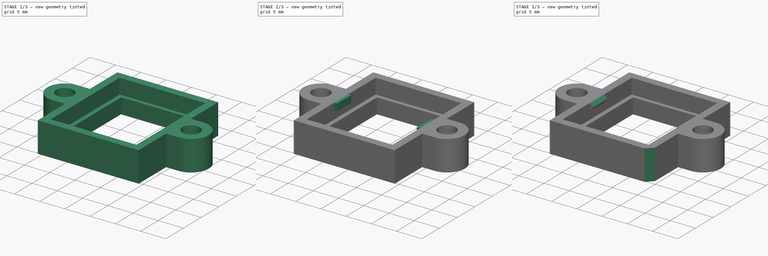
[diagram: build sequence overview — one tinted view per stage of 3, left to right]
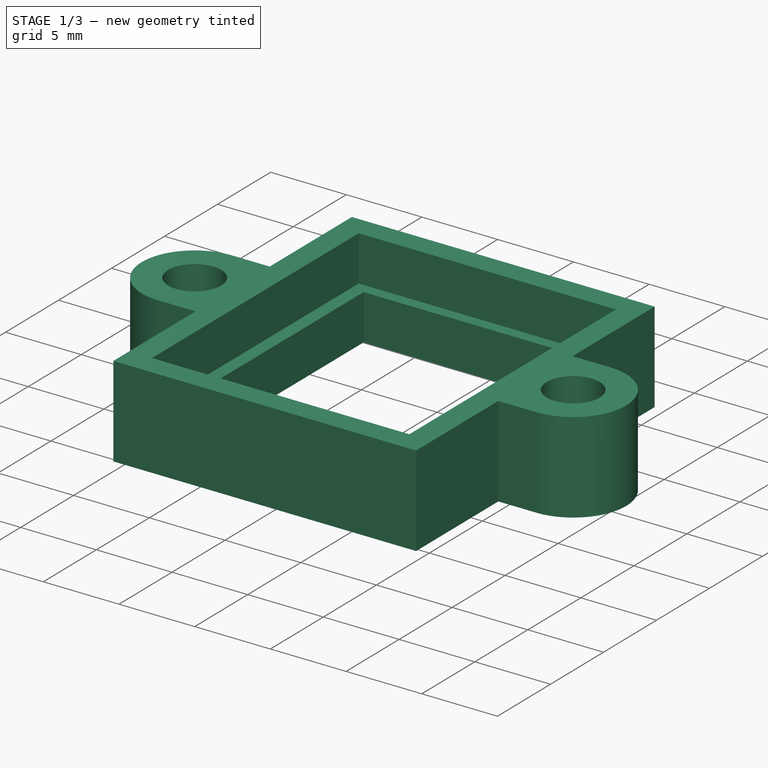
[diagram: stage 1 of 3 — iso view after this stage's code; geometry added in this stage tinted green]
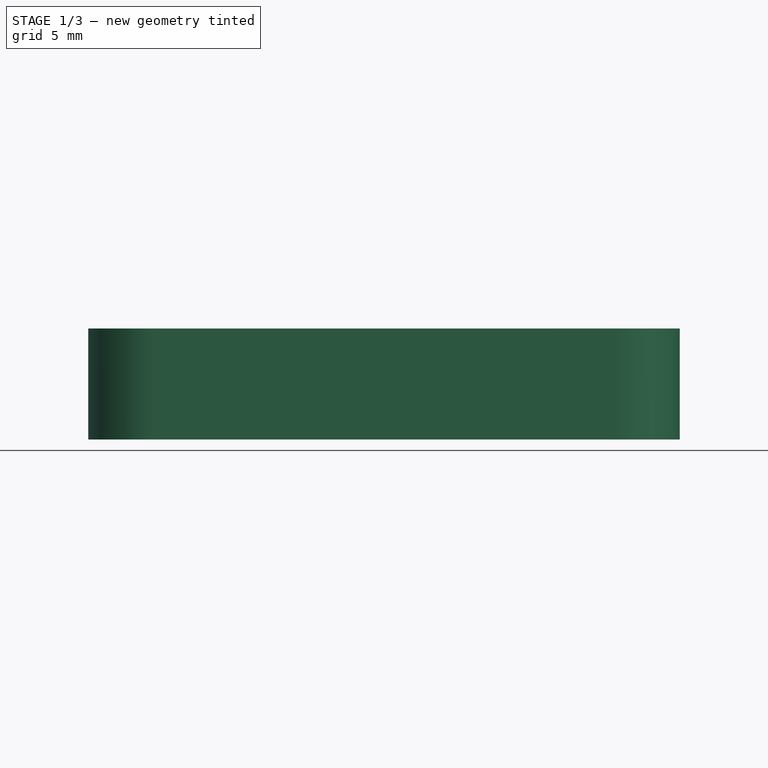
[diagram: stage 1 of 3 — front view after this stage's code; geometry added in this stage tinted green]
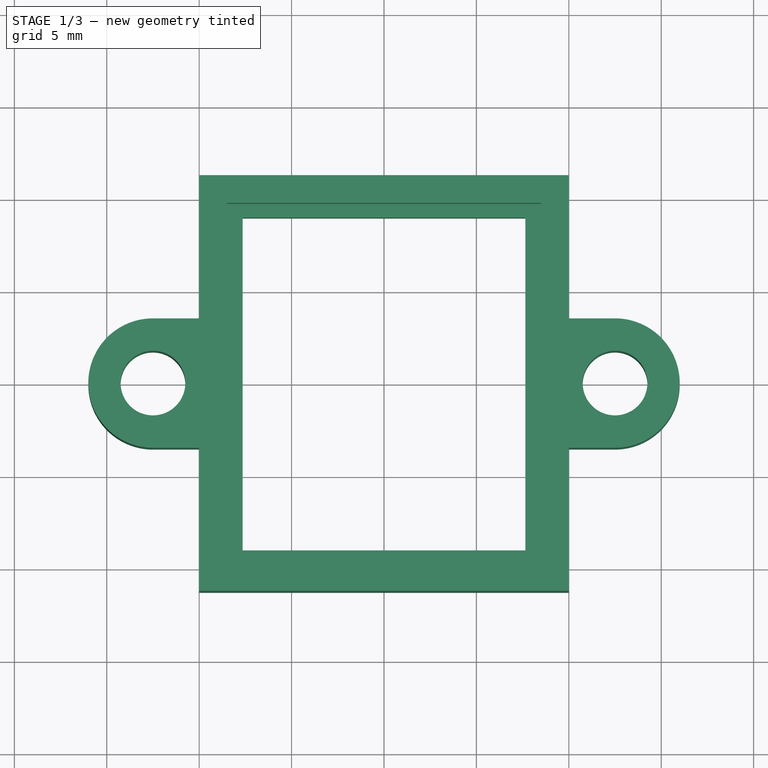
[diagram: stage 1 of 3 — top view after this stage's code; geometry added in this stage tinted green]
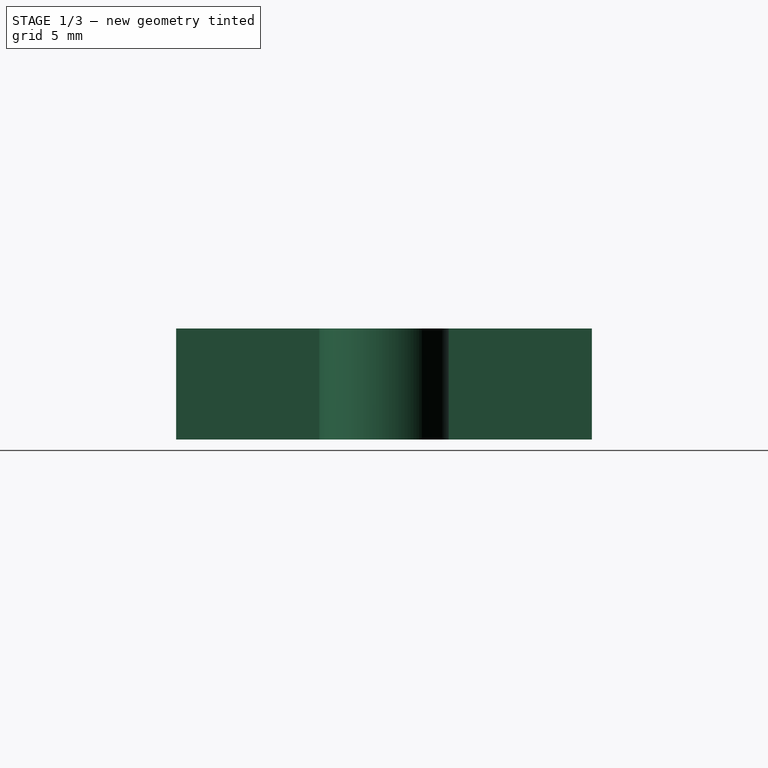
[diagram: stage 1 of 3 — right view after this stage's code; geometry added in this stage tinted green]
FCSTD DOCUMENT  (FreeCAD 0.17R13541 (Git))
Label: DRV8833_holder
License: All rights reserved
LicenseURL: http://en.wikipedia.org/wiki/All_rights_reserved
objects: Sketcher::SketchObject×3, PartDesign::Pad×2, PartDesign::Chamfer×2, PartDesign::Pocket×1, PartDesign::Body×1
note: 12 computed .brp shape members not serialized (recipe doc carries the construction recipe); baked Part::Feature solids carry a one-line shape summary decoded from their .brp

FEATURE [Sketcher::SketchObject] Sketch
  MapMode = 5
  Support = -> [XY_Plane]
  sketch-geometry (18):
    g0: LineSegment StartX=-7.65 StartY=9 StartZ=0 EndX=7.65 EndY=9 EndZ=0
    g1: LineSegment StartX=7.65 StartY=9 StartZ=0 EndX=7.65 EndY=-9 EndZ=0
    g2: LineSegment StartX=7.65 StartY=-9 StartZ=0 EndX=-7.65 EndY=-9 EndZ=0
    g3: LineSegment StartX=-7.65 StartY=-9 StartZ=0 EndX=-7.65 EndY=9 EndZ=0
    g4: LineSegment StartX=-10 StartY=11.25 StartZ=0 EndX=10 EndY=11.25 EndZ=0
    g5: LineSegment StartX=10 StartY=11.25 StartZ=0 EndX=10 EndY=3.5 EndZ=0
    g6: LineSegment StartX=10 StartY=-11.25 StartZ=0 EndX=-10 EndY=-11.25 EndZ=0
    g7: LineSegment StartX=-10 StartY=-11.25 StartZ=0 EndX=-10 EndY=-3.5 EndZ=0
    g8: Circle CenterX=-12.5 CenterY=0 CenterZ=0 NormalX=0 NormalY=0 NormalZ=1 AngleXU=0 Radius=1.75
    g9: Circle CenterX=12.5 CenterY=0 CenterZ=0 NormalX=0 NormalY=0 NormalZ=1 AngleXU=0 Radius=1.75
    g10: LineSegment StartX=-10 StartY=3.5 StartZ=0 EndX=-12.5 EndY=3.5 EndZ=0
    g11: LineSegment StartX=-12.5 StartY=-3.5 StartZ=0 EndX=-10 EndY=-3.5 EndZ=0
    g12: LineSegment StartX=10 StartY=-3.5 StartZ=0 EndX=12.5 EndY=-3.5 EndZ=0
    g13: LineSegment StartX=12.5 StartY=3.5 StartZ=0 EndX=10 EndY=3.5 EndZ=0
    g14: ArcOfCircle CenterX=-12.5 CenterY=0 CenterZ=0 NormalX=0 NormalY=0 NormalZ=1 AngleXU=0 Radius=3.5 StartAngle=1.5708 EndAngle=4.71239
    g15: ArcOfCircle CenterX=12.5 CenterY=0 CenterZ=0 NormalX=0 NormalY=0 NormalZ=1 AngleXU=0 Radius=3.5 StartAngle=4.71239 EndAngle=7.85398
    g16: LineSegment StartX=-10 StartY=3.5 StartZ=0 EndX=-10 EndY=11.25 EndZ=0
    g17: LineSegment StartX=10 StartY=-3.5 StartZ=0 EndX=10 EndY=-11.25 EndZ=0
  constraints (48):
    c: Coincident(g0,g1)
    c: Coincident(g1,g2)
    c: Coincident(g2,g3)
    c: Coincident(g3,g0)
    c: Horizontal(g0)
    c: Horizontal(g2)
    c: Vertical(g1)
    c: Vertical(g3)
    c: Coincident(g4,g5)
    c: Coincident(g17,g6)
    c: Coincident(g6,g7)
    c: Coincident(g16,g4)
    c: Horizontal(g4)
    c: Horizontal(g6)
    c: Vertical(g5)
    c: Vertical(g7)
    c: PointOnObject(g8,g-1)
    c: PointOnObject(g9,g-1)
    c: Symmetric(g0,g2,g-1)
    c: Symmetric(g4,g6,g-1)
    c: Symmetric(g6,g17,g-2)
    c: Symmetric(g2,g1,g-2)
    c: Symmetric(g8,g9,g-2)
    c: DistanceY(g3,g3) = 18
    c: DistanceX(g2,g2) = 15.3
    c: DistanceY(g7,g16) = 22.5
    c: DistanceX(g4,g4) = 20
    c: DistanceX(g8,g9) = 25
    c: Horizontal(g10)
    c: Horizontal(g11)
    c: Horizontal(g12)
    c: Horizontal(g13)
    c: Coincident(g14,g8)
    c: Coincident(g15,g9)
    c: Equal(g8,g9)
    c: Equal(g14,g15)
    c: Radius(g8) = 1.75
    c: Tangent(g14,g11) = -1.5708
    c: Tangent(g14,g10) = -1.5708
    c: Tangent(g15,g13) = -1.5708
    c: Tangent(g15,g12) = -1.5708
    c: Radius(g14) = 3.5
    c: Coincident(g7,g11)
    c: Coincident(g16,g10)
    c: Tangent(g7,g16)
    c: Coincident(g5,g13)
    c: Coincident(g17,g12)
    c: Tangent(g5,g17)
FEATURE [PartDesign::Pad] Pad
  Length = 6
  Length2 = 100
  Profile = -> Sketch
  Type = 0
FEATURE [Sketcher::SketchObject] Sketch001
  MapMode = 5
  Placement = pos=(0,0,6) rot=(0,0,1;0rad)
  Support = -> [Pad]
  sketch-geometry (4):
    g0: LineSegment StartX=-8.5 StartY=9.75 StartZ=0 EndX=8.5 EndY=9.75 EndZ=0
    g1: LineSegment StartX=8.5 StartY=9.75 StartZ=0 EndX=8.5 EndY=-9.75 EndZ=0
    g2: LineSegment StartX=8.5 StartY=-9.75 StartZ=0 EndX=-8.5 EndY=-9.75 EndZ=0
    g3: LineSegment StartX=-8.5 StartY=-9.75 StartZ=0 EndX=-8.5 EndY=9.75 EndZ=0
  constraints (12):
    c: Coincident(g0,g1)
    c: Coincident(g1,g2)
    c: Coincident(g2,g3)
    c: Coincident(g3,g0)
    c: Horizontal(g0)
    c: Horizontal(g2)
    c: Vertical(g1)
    c: Vertical(g3)
    c: Symmetric(g0,g2,g-1)
    c: Symmetric(g2,g1,g-2)
    c: DistanceX(g2,g2) = 17
    c: DistanceY(g1,g1) = 19.5
FEATURE [PartDesign::Pocket] Pocket
  BaseFeature = -> Pad
  Length = 3
  Length2 = 100
  Profile = -> Sketch001
  Type = 0
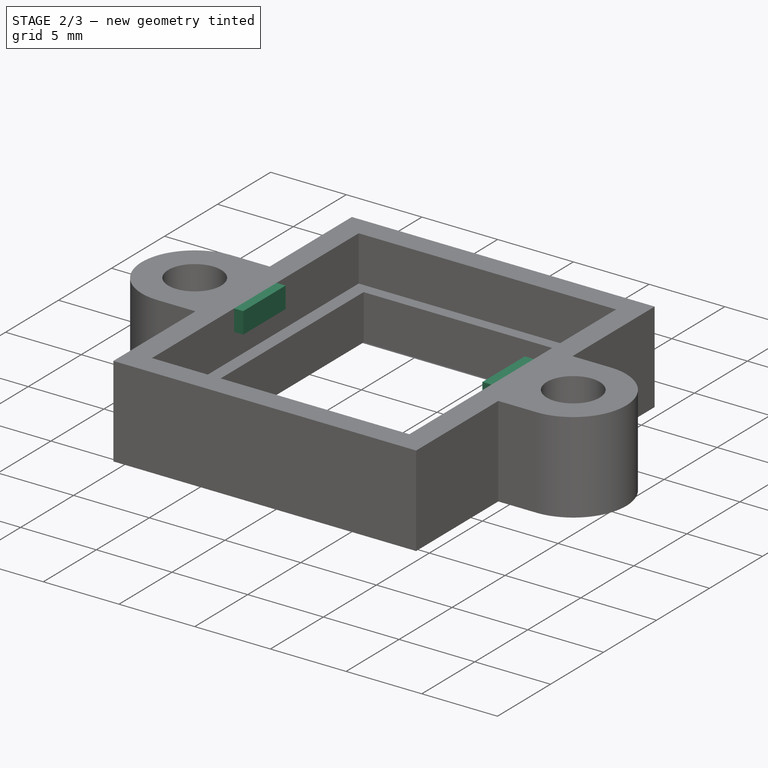
[diagram: stage 2 of 3 — iso view after this stage's code; geometry added in this stage tinted green]
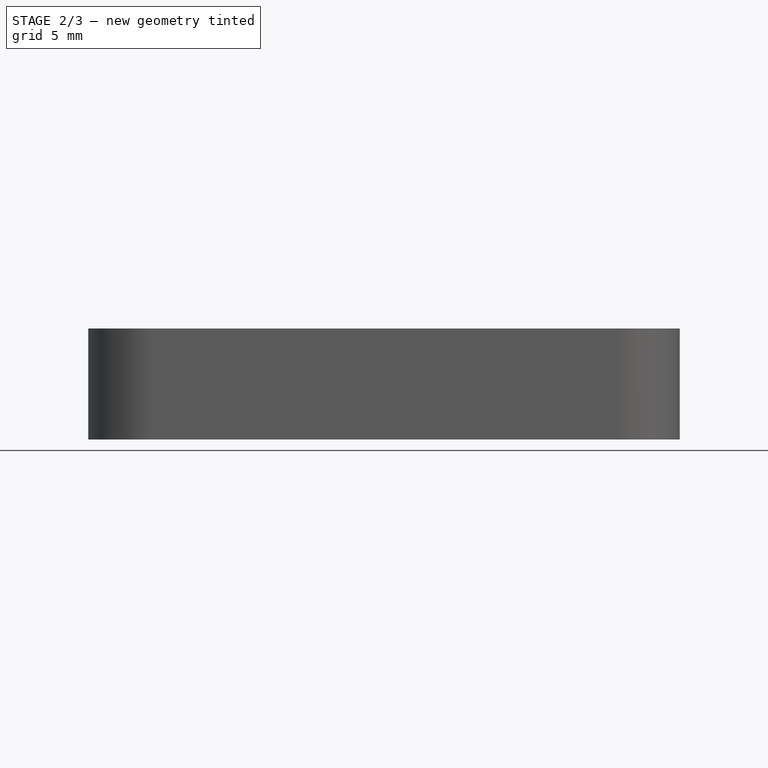
[diagram: stage 2 of 3 — front view after this stage's code; geometry added in this stage tinted green]
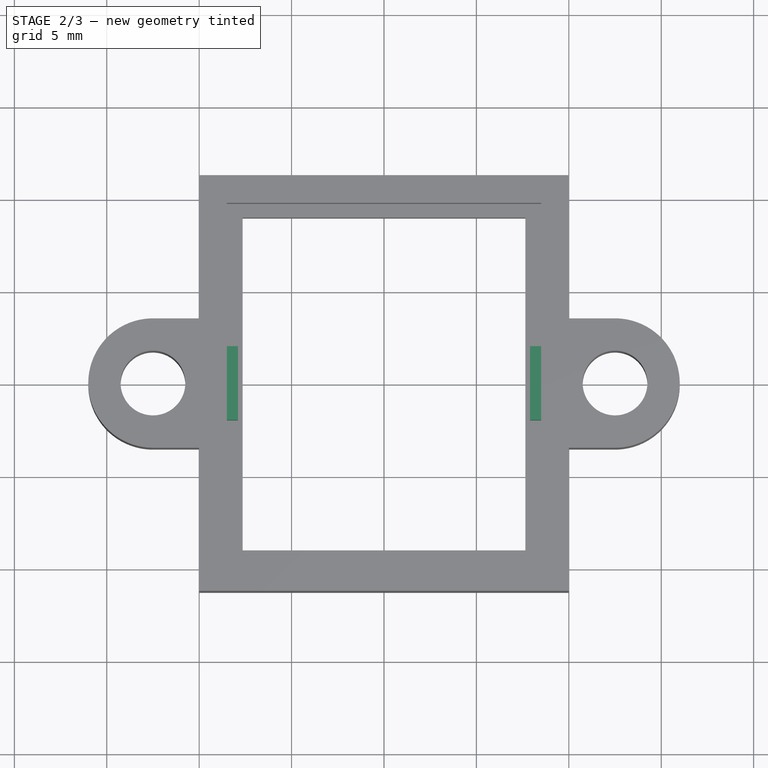
[diagram: stage 2 of 3 — top view after this stage's code; geometry added in this stage tinted green]
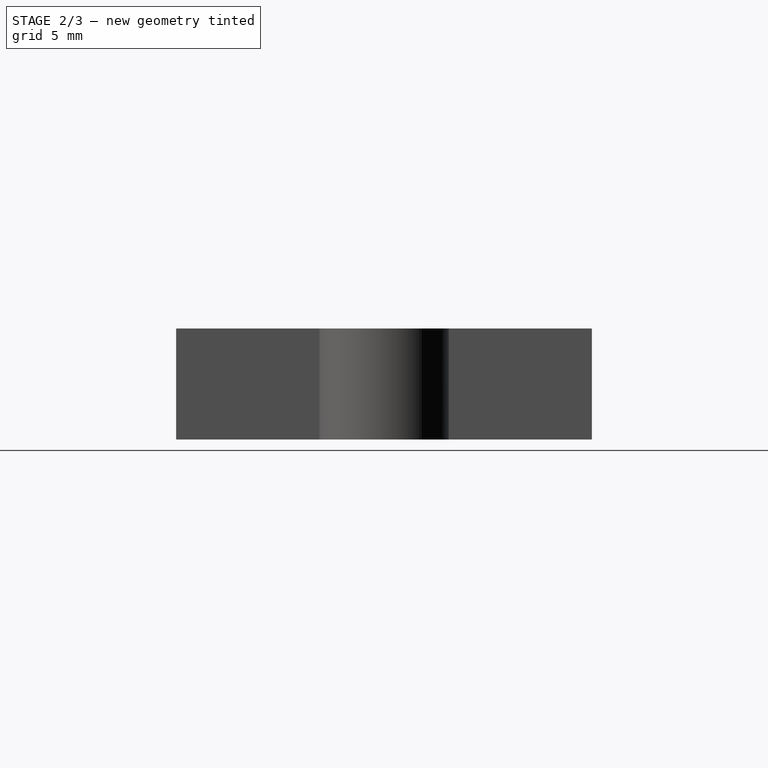
[diagram: stage 2 of 3 — right view after this stage's code; geometry added in this stage tinted green]
FEATURE [Sketcher::SketchObject] Sketch002
  MapMode = 5
  Placement = pos=(0,0,6) rot=(0,0,1;0rad)
  Support = -> [Pocket]
  sketch-geometry (8):
    g0: LineSegment StartX=-8.5 StartY=2 StartZ=0 EndX=-7.9 EndY=2 EndZ=0
    g1: LineSegment StartX=-7.9 StartY=2 StartZ=0 EndX=-7.9 EndY=-2 EndZ=0
    g2: LineSegment StartX=-7.9 StartY=-2 StartZ=0 EndX=-8.5 EndY=-2 EndZ=0
    g3: LineSegment StartX=-8.5 StartY=-2 StartZ=0 EndX=-8.5 EndY=2 EndZ=0
    g4: LineSegment StartX=8.5 StartY=2 StartZ=0 EndX=7.9 EndY=2 EndZ=0
    g5: LineSegment StartX=7.9 StartY=2 StartZ=0 EndX=7.9 EndY=-2 EndZ=0
    g6: LineSegment StartX=7.9 StartY=-2 StartZ=0 EndX=8.5 EndY=-2 EndZ=0
    g7: LineSegment StartX=8.5 StartY=-2 StartZ=0 EndX=8.5 EndY=2 EndZ=0
  constraints (24):
    c: Coincident(g0,g1)
    c: Coincident(g1,g2)
    c: Coincident(g2,g3)
    c: Coincident(g3,g0)
    c: Horizontal(g0)
    c: Horizontal(g2)
    c: Vertical(g1)
    c: Vertical(g3)
    c: Coincident(g4,g5)
    c: Coincident(g5,g6)
    c: Coincident(g6,g7)
    c: Coincident(g7,g4)
    c: Horizontal(g4)
    c: Horizontal(g6)
    c: Vertical(g5)
    c: Vertical(g7)
    c: Equal(g2,g6)
    c: Equal(g1,g5)
    c: PointOnObject(g4,g0)
    c: Symmetric(g0,g4,g-2)
    c: DistanceY(g3,g3) = 4
    c: Symmetric(g2,g0,g-1)
    c: DistanceX(g4,g4) = -0.6
    c: DistanceX(g0,g4) = 17
FEATURE [PartDesign::Pad] Pad001
  BaseFeature = -> Pocket
  Length = 1.4
  Length2 = 100
  Profile = -> Sketch002
  Reversed = true
  Type = 0
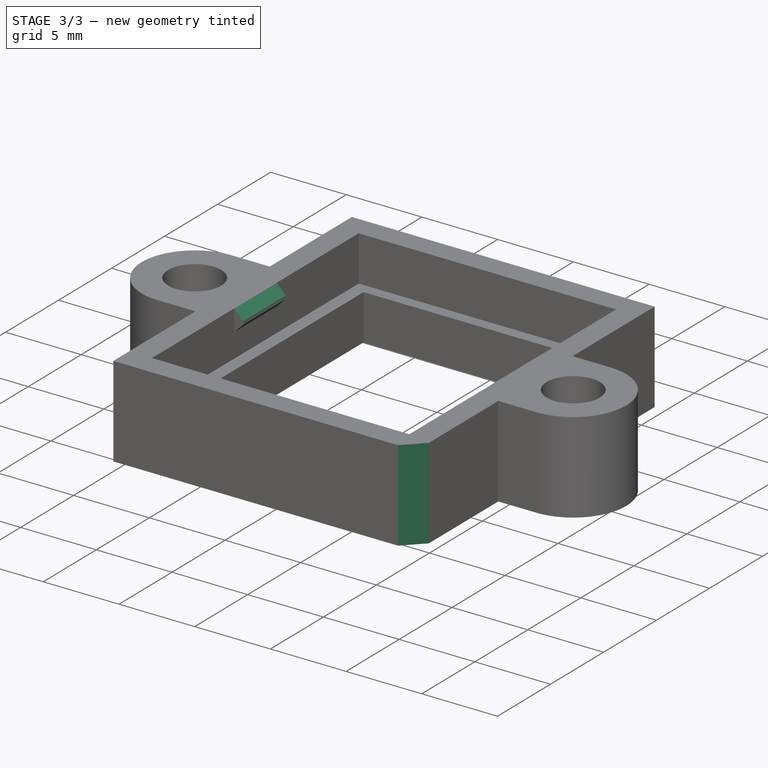
[diagram: stage 3 of 3 — iso view after this stage's code; geometry added in this stage tinted green]
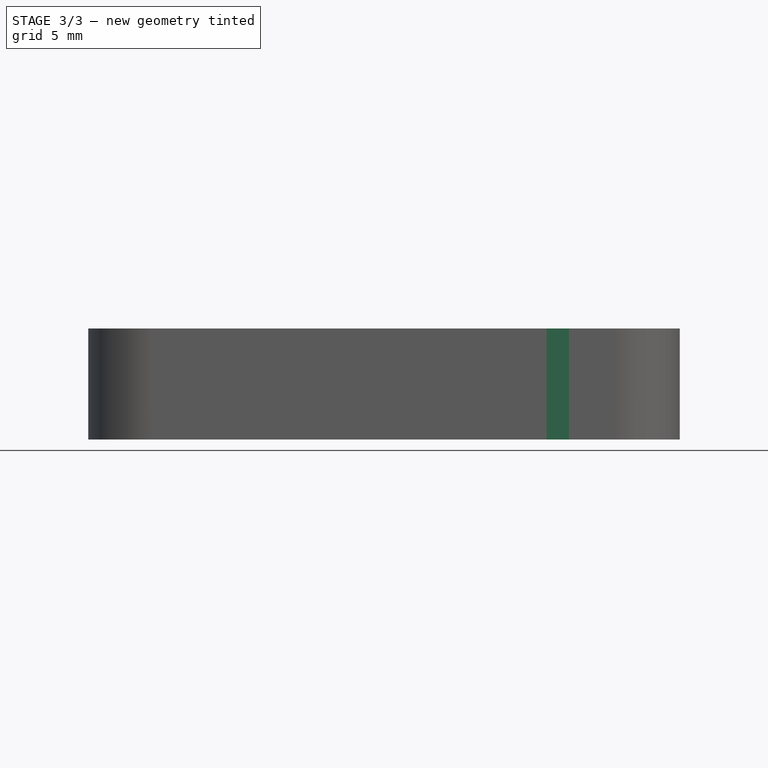
[diagram: stage 3 of 3 — front view after this stage's code; geometry added in this stage tinted green]
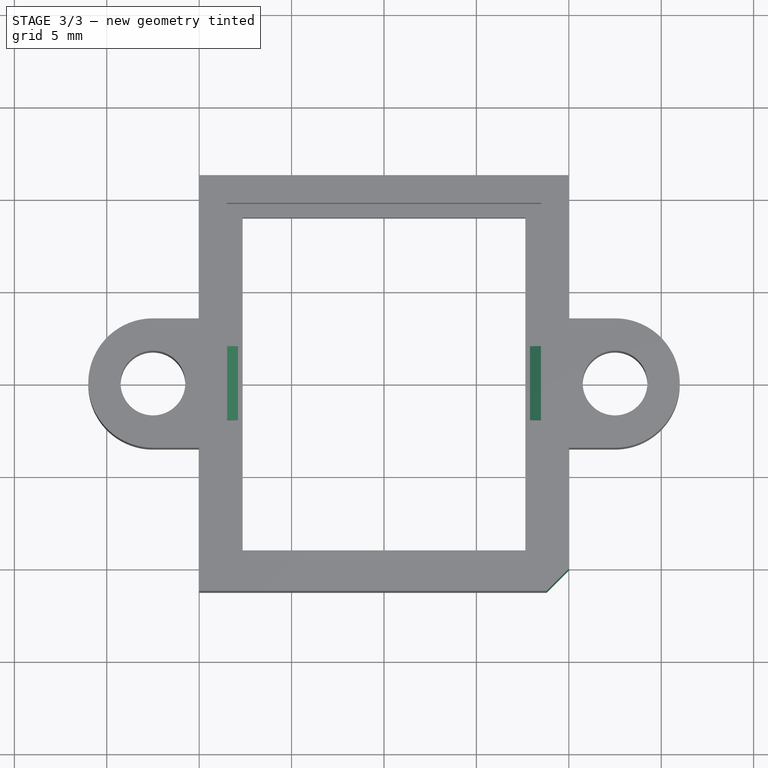
[diagram: stage 3 of 3 — top view after this stage's code; geometry added in this stage tinted green]
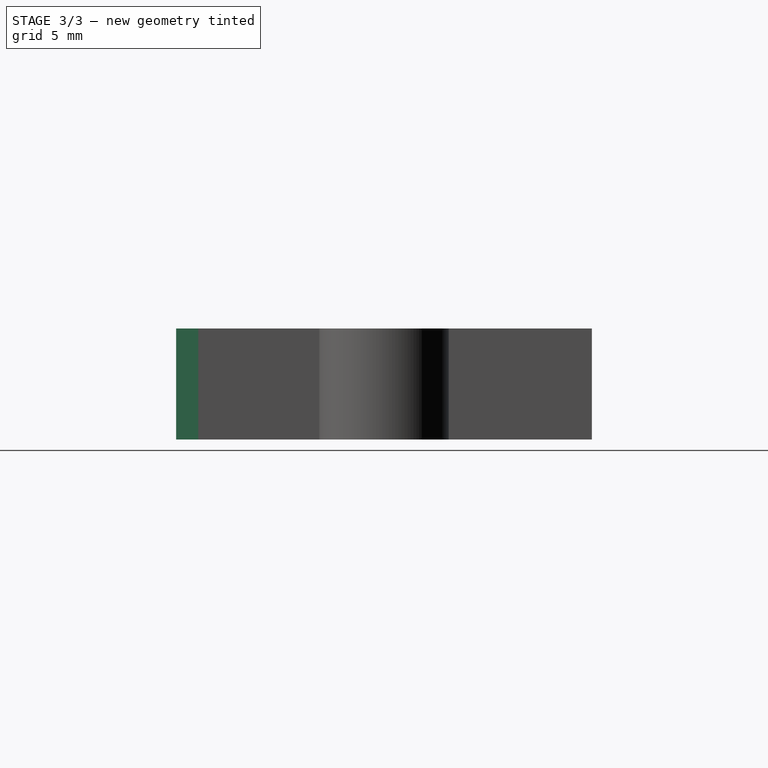
[diagram: stage 3 of 3 — right view after this stage's code; geometry added in this stage tinted green]
FEATURE [PartDesign::Chamfer] Chamfer
  Base = -> Pad001 [Edge72,Edge85,Edge81,Edge91]
  BaseFeature = -> Pad001
  Size = 0.59
FEATURE [PartDesign::Chamfer] Chamfer001
  Base = -> Chamfer [Edge62]
  BaseFeature = -> Chamfer
  Size = 1.2
FEATURE [PartDesign::Body] Body
  Group = -> [Sketch,Pad,Sketch001,Pocket,Sketch002,Pad001,Chamfer,Chamfer001]
  Origin = -> Origin
  Tip = -> Chamfer001
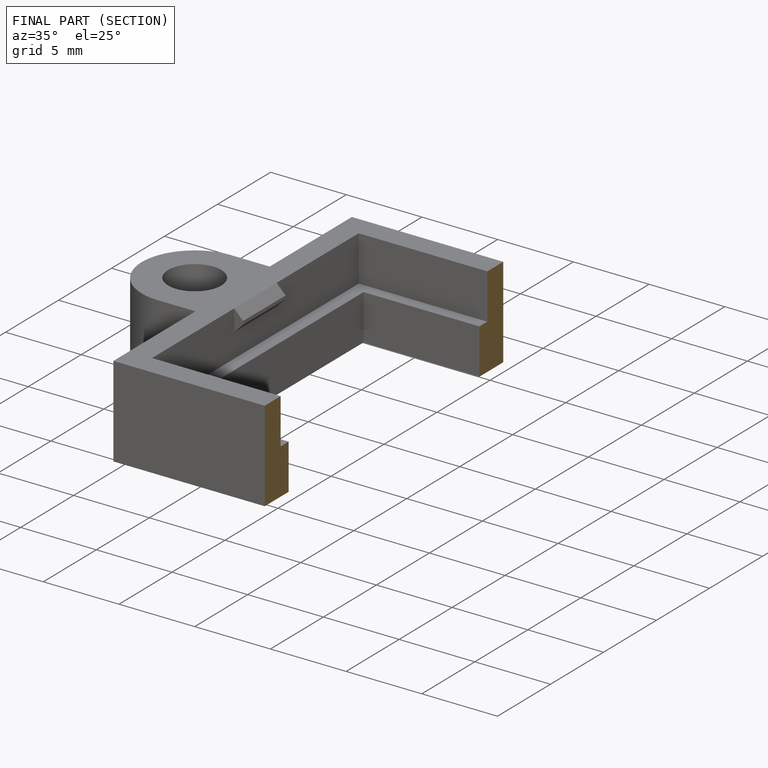
[diagram: finished part — half-section view (interior)]
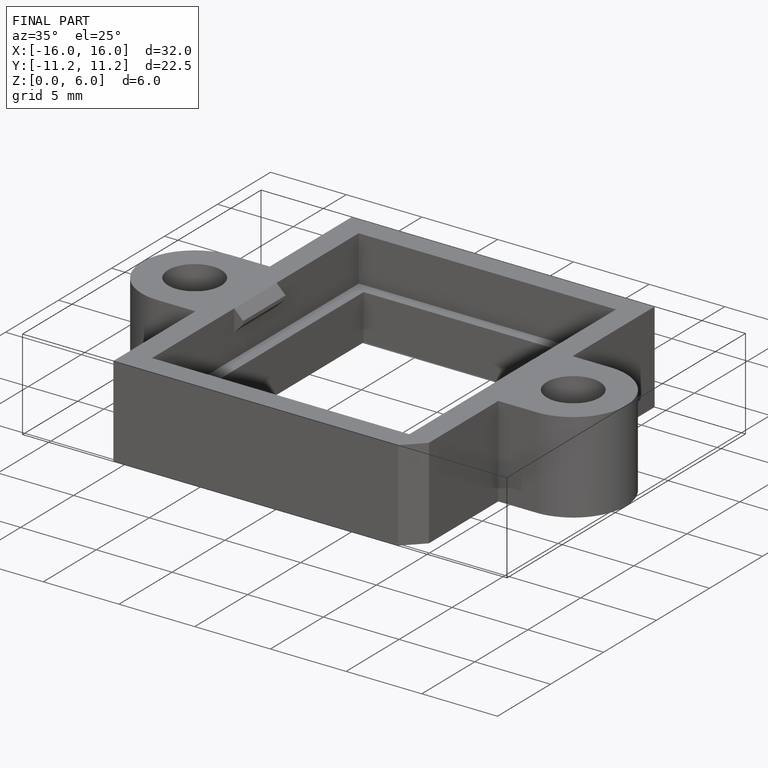
[diagram: finished part — iso view with bounding-box wireframe]
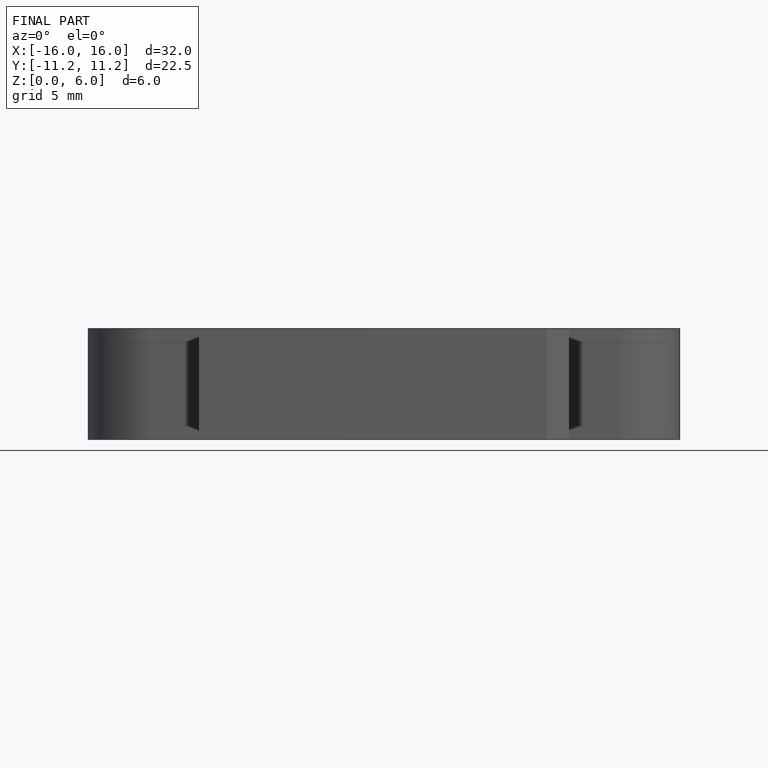
[diagram: finished part — front view with bounding-box wireframe]
